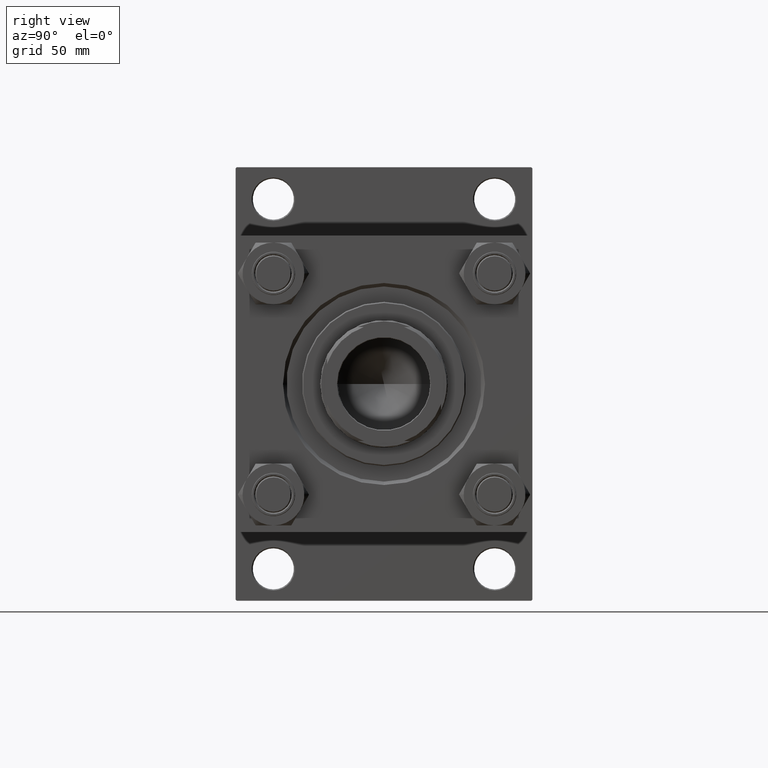
[diagram: clean part render]
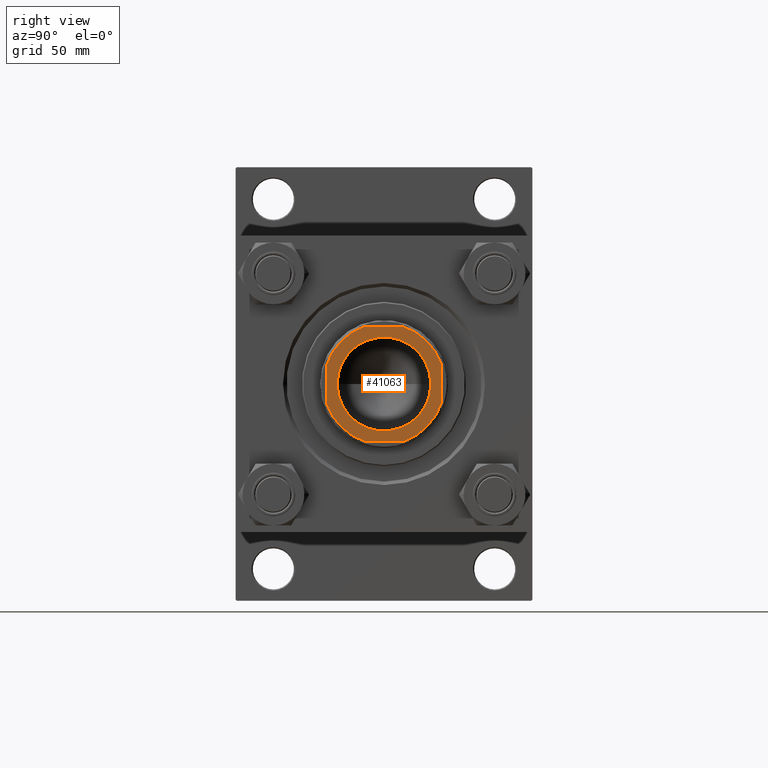
[diagram: same view with one face highlighted and labeled with its STEP entity id]
A machine part, right view. The second image highlights one B-rep face of the part: STEP entity #41063.
In plain terms, the highlighted planar face has unit normal (1, 0, 0).
Its self-contained STEP definition (entity closure, byte-faithful):
#449 = EDGE_CURVE ( 'NONE', #5501, #49801, #18197, .T. ) ;
#1071 = VECTOR ( 'NONE', #16656, 1000.000000000000000 ) ;
#1329 = CARTESIAN_POINT ( 'NONE',  ( -25.00000000000000000, 25.00000000000000000, 178.0000000000000284 ) ) ;
#1369 = DIRECTION ( 'NONE',  ( 1.000000000000000000, 0.000000000000000000, 0.000000000000000000 ) ) ;
#1616 = CARTESIAN_POINT ( 'NONE',  ( 0.000000000000000000, 0.000000000000000000, 178.0000000000000284 ) ) ;
#3351 = CARTESIAN_POINT ( 'NONE',  ( 0.000000000000000000, 0.000000000000000000, 178.0000000000000284 ) ) ;
#3725 = CIRCLE ( 'NONE', #42883, 26.50000000000002842 ) ;
#3899 = CARTESIAN_POINT ( 'NONE',  ( 25.00000000000000355, -8.789197915623526924, 178.0000000000000284 ) ) ;
#4867 = EDGE_CURVE ( 'NONE', #49164, #42470, #49870, .T. ) ;
#5501 = VERTEX_POINT ( 'NONE', #22406 ) ;
#5520 = EDGE_CURVE ( 'NONE', #49801, #11092, #10758, .T. ) ;
#6119 = AXIS2_PLACEMENT_3D ( 'NONE', #26425, #35373, #40215 ) ;
#6809 = ORIENTED_EDGE ( 'NONE', *, *, #36812, .T. ) ;
#7222 = CIRCLE ( 'NONE', #23552, 26.50000000000000711 ) ;
#7400 = EDGE_LOOP ( 'NONE', ( #30775, #44096, #13659, #25666, #45047, #44026, #47883, #6809 ) ) ;
#7986 = FACE_OUTER_BOUND ( 'NONE', #7400, .T. ) ;
#9874 = CARTESIAN_POINT ( 'NONE',  ( 25.00000000000000355, 8.789197915623548241, 178.0000000000000284 ) ) ;
#10282 = VECTOR ( 'NONE', #44316, 1000.000000000000000 ) ;
#10758 = CIRCLE ( 'NONE', #43400, 26.49999999999995737 ) ;
#11092 = VERTEX_POINT ( 'NONE', #23848 ) ;
#12144 = EDGE_CURVE ( 'NONE', #11092, #37509, #34794, .T. ) ;
#13659 = ORIENTED_EDGE ( 'NONE', *, *, #449, .T. ) ;
#14686 = VECTOR ( 'NONE', #49363, 1000.000000000000000 ) ;
#15129 = FACE_BOUND ( 'NONE', #36026, .T. ) ;
#15756 = ORIENTED_EDGE ( 'NONE', *, *, #15767, .T. ) ;
#15767 = EDGE_CURVE ( 'NONE', #49900, #36699, #49290, .T. ) ;
#16624 = CARTESIAN_POINT ( 'NONE',  ( 20.55000000000001137, 0.000000000000000000, 178.0000000000000284 ) ) ;
#16656 = DIRECTION ( 'NONE',  ( 1.387778780781445676E-16, -1.000000000000000000, 0.000000000000000000 ) ) ;
#18197 = LINE ( 'NONE', #33767, #14686 ) ;
#19315 = CIRCLE ( 'NONE', #26629, 26.50000000000002487 ) ;
#21089 = CARTESIAN_POINT ( 'NONE',  ( -24.99999999999999645, -8.789197915623496726, 178.0000000000000284 ) ) ;
#21554 = CARTESIAN_POINT ( 'NONE',  ( 25.00000000000000000, 25.00000000000000000, 178.0000000000000284 ) ) ;
#21631 = CARTESIAN_POINT ( 'NONE',  ( 0.000000000000000000, 0.000000000000000000, 178.0000000000000284 ) ) ;
#22406 = CARTESIAN_POINT ( 'NONE',  ( 8.789197915623548241, 25.00000000000000000, 178.0000000000000284 ) ) ;
#23552 = AXIS2_PLACEMENT_3D ( 'NONE', #24538, #40131, #48051 ) ;
#23848 = CARTESIAN_POINT ( 'NONE',  ( -24.99999999999999645, 8.789197915623349289, 178.0000000000000284 ) ) ;
#24538 = CARTESIAN_POINT ( 'NONE',  ( 0.000000000000000000, 0.000000000000000000, 178.0000000000000284 ) ) ;
#25666 = ORIENTED_EDGE ( 'NONE', *, *, #5520, .T. ) ;
#26182 = EDGE_CURVE ( 'NONE', #37509, #49164, #7222, .T. ) ;
#26425 = CARTESIAN_POINT ( 'NONE',  ( 0.000000000000000000, 0.000000000000000000, 178.0000000000000284 ) ) ;
#26629 = AXIS2_PLACEMENT_3D ( 'NONE', #1616, #44275, #1369 ) ;
#27372 = PLANE ( 'NONE',  #29113 ) ;
#28720 = LINE ( 'NONE', #21554, #10282 ) ;
#29113 = AXIS2_PLACEMENT_3D ( 'NONE', #30696, #42458, #42717 ) ;
#29342 = CARTESIAN_POINT ( 'NONE',  ( -8.789197915623482515, -25.00000000000000000, 178.0000000000000284 ) ) ;
#29388 = VERTEX_POINT ( 'NONE', #9874 ) ;
#29568 = DIRECTION ( 'NONE',  ( -0.000000000000000000, 0.000000000000000000, 1.000000000000000000 ) ) ;
#29792 = DIRECTION ( 'NONE',  ( 1.000000000000000000, 0.000000000000000000, 0.000000000000000000 ) ) ;
#30251 = ORIENTED_EDGE ( 'NONE', *, *, #47717, .T. ) ;
#30437 = DIRECTION ( 'NONE',  ( 1.000000000000000000, 0.000000000000000000, 0.000000000000000000 ) ) ;
#30696 = CARTESIAN_POINT ( 'NONE',  ( 0.000000000000000000, 0.000000000000000000, 178.0000000000000284 ) ) ;
#30775 = ORIENTED_EDGE ( 'NONE', *, *, #34603, .T. ) ;
#33050 = EDGE_CURVE ( 'NONE', #29388, #5501, #3725, .T. ) ;
#33382 = DIRECTION ( 'NONE',  ( 0.000000000000000000, -0.000000000000000000, -1.000000000000000000 ) ) ;
#33767 = CARTESIAN_POINT ( 'NONE',  ( -25.00000000000000000, 25.00000000000000000, 178.0000000000000284 ) ) ;
#34252 = CARTESIAN_POINT ( 'NONE',  ( -8.789197915623342183, 25.00000000000000000, 178.0000000000000284 ) ) ;
#34603 = EDGE_CURVE ( 'NONE', #37850, #29388, #28720, .T. ) ;
#34794 = LINE ( 'NONE', #1329, #1071 ) ;
#35373 = DIRECTION ( 'NONE',  ( 0.000000000000000000, -0.000000000000000000, -1.000000000000000000 ) ) ;
#36026 = EDGE_LOOP ( 'NONE', ( #15756, #30251 ) ) ;
#36699 = VERTEX_POINT ( 'NONE', #38940 ) ;
#36812 = EDGE_CURVE ( 'NONE', #42470, #37850, #19315, .T. ) ;
#37509 = VERTEX_POINT ( 'NONE', #21089 ) ;
#37850 = VERTEX_POINT ( 'NONE', #3899 ) ;
#37871 = CARTESIAN_POINT ( 'NONE',  ( -24.99999999999999289, -25.00000000000000000, 178.0000000000000284 ) ) ;
#38345 = AXIS2_PLACEMENT_3D ( 'NONE', #21631, #33382, #29792 ) ;
#38940 = CARTESIAN_POINT ( 'NONE',  ( -20.55000000000001137, 2.516649172247812343E-15, 178.0000000000000284 ) ) ;
#40131 = DIRECTION ( 'NONE',  ( -0.000000000000000000, 0.000000000000000000, 1.000000000000000000 ) ) ;
#40215 = DIRECTION ( 'NONE',  ( 1.000000000000000000, 0.000000000000000000, 0.000000000000000000 ) ) ;
#40831 = CARTESIAN_POINT ( 'NONE',  ( 0.000000000000000000, 0.000000000000000000, 178.0000000000000284 ) ) ;
#41063 = ADVANCED_FACE ( 'NONE', ( #15129, #7986 ), #27372, .T. ) ;
#41419 = DIRECTION ( 'NONE',  ( -0.000000000000000000, 0.000000000000000000, 1.000000000000000000 ) ) ;
#42406 = CARTESIAN_POINT ( 'NONE',  ( 8.789197915623537583, -25.00000000000000000, 178.0000000000000284 ) ) ;
#42458 = DIRECTION ( 'NONE',  ( -0.000000000000000000, 0.000000000000000000, 1.000000000000000000 ) ) ;
#42470 = VERTEX_POINT ( 'NONE', #42406 ) ;
#42717 = DIRECTION ( 'NONE',  ( 1.000000000000000000, 0.000000000000000000, 0.000000000000000000 ) ) ;
#42883 = AXIS2_PLACEMENT_3D ( 'NONE', #3351, #41419, #45260 ) ;
#43400 = AXIS2_PLACEMENT_3D ( 'NONE', #40831, #29568, #45168 ) ;
#44026 = ORIENTED_EDGE ( 'NONE', *, *, #26182, .T. ) ;
#44096 = ORIENTED_EDGE ( 'NONE', *, *, #33050, .T. ) ;
#44275 = DIRECTION ( 'NONE',  ( -0.000000000000000000, 0.000000000000000000, 1.000000000000000000 ) ) ;
#44316 = DIRECTION ( 'NONE',  ( -1.387778780781445676E-16, 1.000000000000000000, -0.000000000000000000 ) ) ;
#44838 = CIRCLE ( 'NONE', #38345, 20.55000000000001137 ) ;
#45047 = ORIENTED_EDGE ( 'NONE', *, *, #12144, .T. ) ;
#45168 = DIRECTION ( 'NONE',  ( 1.000000000000000000, 0.000000000000000000, 0.000000000000000000 ) ) ;
#45260 = DIRECTION ( 'NONE',  ( 1.000000000000000000, 0.000000000000000000, 0.000000000000000000 ) ) ;
#46658 = VECTOR ( 'NONE', #30437, 1000.000000000000000 ) ;
#47717 = EDGE_CURVE ( 'NONE', #36699, #49900, #44838, .T. ) ;
#47883 = ORIENTED_EDGE ( 'NONE', *, *, #4867, .T. ) ;
#48051 = DIRECTION ( 'NONE',  ( 1.000000000000000000, 0.000000000000000000, 0.000000000000000000 ) ) ;
#49164 = VERTEX_POINT ( 'NONE', #29342 ) ;
#49290 = CIRCLE ( 'NONE', #6119, 20.55000000000001137 ) ;
#49363 = DIRECTION ( 'NONE',  ( -1.000000000000000000, -0.000000000000000000, -0.000000000000000000 ) ) ;
#49801 = VERTEX_POINT ( 'NONE', #34252 ) ;
#49870 = LINE ( 'NONE', #37871, #46658 ) ;
#49900 = VERTEX_POINT ( 'NONE', #16624 ) ;